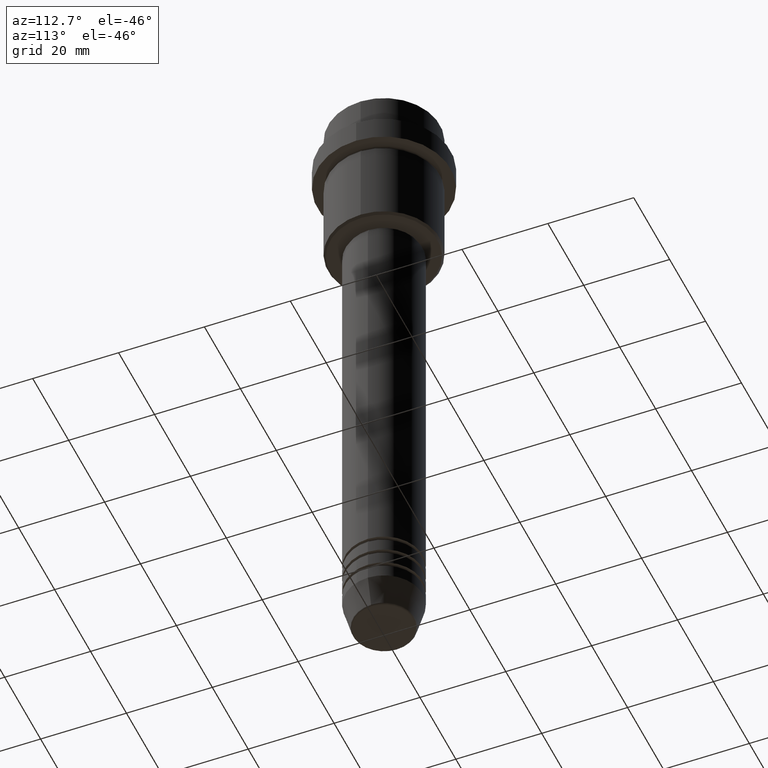
[diagram: clean part render]
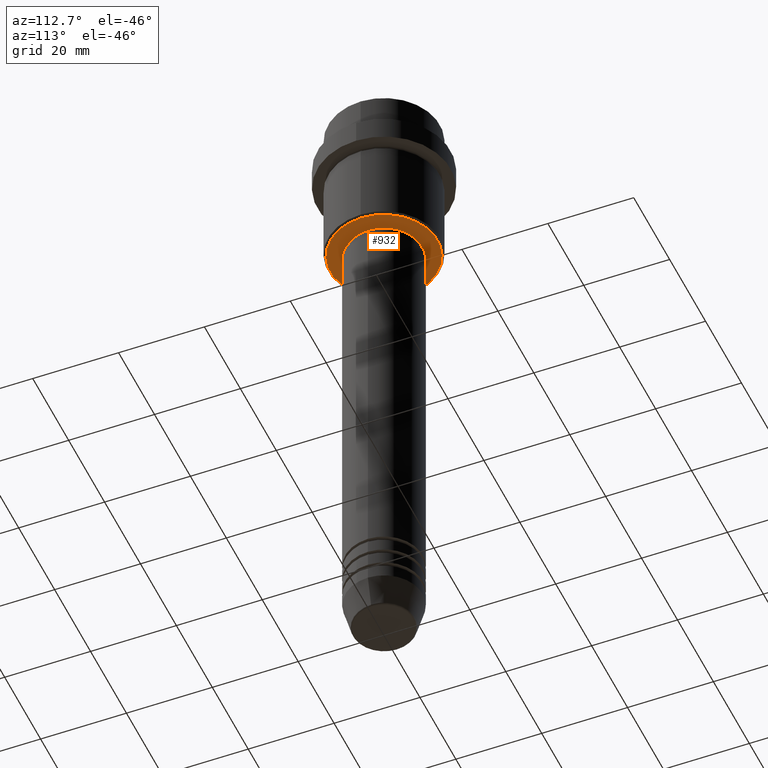
[diagram: same view with one face highlighted and labeled with its STEP entity id]
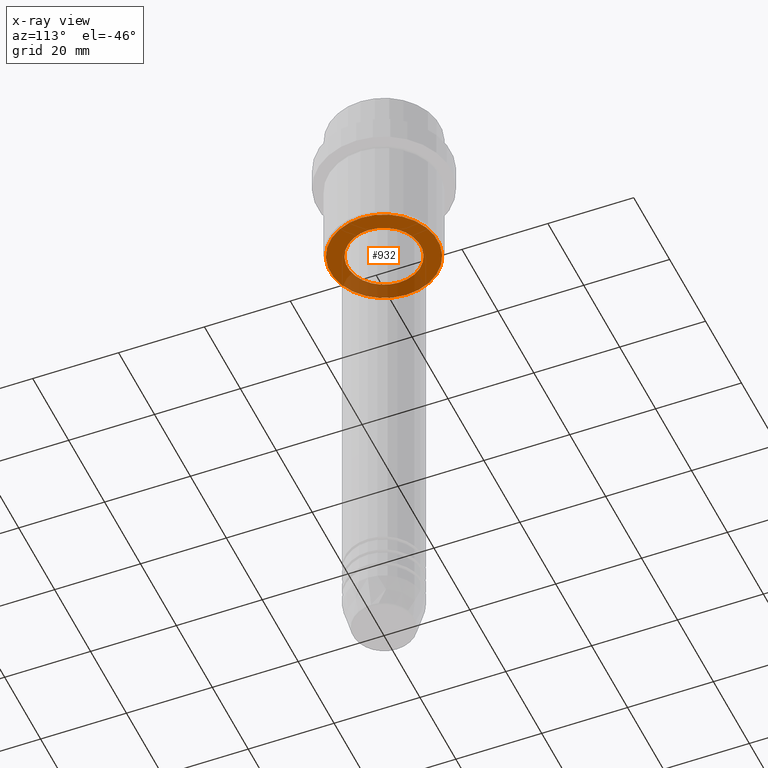
[diagram: x-ray of the same camera — body ghosted, the highlighted face saturated]
A machine part, auxiliary view. The second image highlights one B-rep face of the part: STEP entity #932.
The next image is the same camera in x-ray: the body ghosted, the highlighted face saturated — about 27% of this face is hidden behind the body in this view.
In plain terms, the highlighted planar face has unit normal (0, 0, -1).
Its self-contained STEP definition (entity closure, byte-faithful):
#3 = DIRECTION ( 'NONE',  ( -1.000000000000000000, 0.000000000000000000, -0.000000000000000000 ) ) ;
#11 = CIRCLE ( 'NONE', #460, 12.49999999999998401 ) ;
#22 = DIRECTION ( 'NONE',  ( 1.000000000000000000, 0.000000000000000000, 0.000000000000000000 ) ) ;
#23 = CARTESIAN_POINT ( 'NONE',  ( 0.000000000000000000, 0.000000000000000000, -36.00000000000000000 ) ) ;
#70 = EDGE_LOOP ( 'NONE', ( #1366, #1353 ) ) ;
#76 = VERTEX_POINT ( 'NONE', #345 ) ;
#79 = AXIS2_PLACEMENT_3D ( 'NONE', #1261, #824, #270 ) ;
#112 = EDGE_CURVE ( 'NONE', #1161, #266, #966, .T. ) ;
#180 = EDGE_LOOP ( 'NONE', ( #1111, #1273 ) ) ;
#227 = FACE_OUTER_BOUND ( 'NONE', #180, .T. ) ;
#230 = DIRECTION ( 'NONE',  ( -1.000000000000000000, 0.000000000000000000, 0.000000000000000000 ) ) ;
#266 = VERTEX_POINT ( 'NONE', #1159 ) ;
#270 = DIRECTION ( 'NONE',  ( 1.000000000000000000, 0.000000000000000000, 0.000000000000000000 ) ) ;
#337 = DIRECTION ( 'NONE',  ( 0.000000000000000000, 0.000000000000000000, -1.000000000000000000 ) ) ;
#345 = CARTESIAN_POINT ( 'NONE',  ( -12.49999999999998401, 1.561424668912874125E-15, -36.00000000000000000 ) ) ;
#354 = CIRCLE ( 'NONE', #814, 12.49999999999998401 ) ;
#375 = AXIS2_PLACEMENT_3D ( 'NONE', #1352, #669, #22 ) ;
#460 = AXIS2_PLACEMENT_3D ( 'NONE', #1393, #735, #1177 ) ;
#500 = CARTESIAN_POINT ( 'NONE',  ( -8.499999999999994671, 1.040949779275249745E-15, -36.00000000000000000 ) ) ;
#638 = VERTEX_POINT ( 'NONE', #1027 ) ;
#669 = DIRECTION ( 'NONE',  ( -0.000000000000000000, -0.000000000000000000, 1.000000000000000000 ) ) ;
#735 = DIRECTION ( 'NONE',  ( 0.000000000000000000, 0.000000000000000000, -1.000000000000000000 ) ) ;
#737 = CIRCLE ( 'NONE', #79, 8.499999999999994671 ) ;
#763 = EDGE_CURVE ( 'NONE', #266, #1161, #737, .T. ) ;
#814 = AXIS2_PLACEMENT_3D ( 'NONE', #23, #1348, #230 ) ;
#824 = DIRECTION ( 'NONE',  ( -0.000000000000000000, -0.000000000000000000, 1.000000000000000000 ) ) ;
#910 = EDGE_CURVE ( 'NONE', #638, #76, #11, .T. ) ;
#913 = PLANE ( 'NONE',  #1009 ) ;
#932 = ADVANCED_FACE ( 'NONE', ( #227, #1326 ), #913, .T. ) ;
#966 = CIRCLE ( 'NONE', #375, 8.499999999999994671 ) ;
#991 = CARTESIAN_POINT ( 'NONE',  ( 0.000000000000000000, 13.00000000000000000, -36.00000000000000000 ) ) ;
#1009 = AXIS2_PLACEMENT_3D ( 'NONE', #991, #337, #3 ) ;
#1027 = CARTESIAN_POINT ( 'NONE',  ( 12.49999999999998401, 0.000000000000000000, -36.00000000000000000 ) ) ;
#1111 = ORIENTED_EDGE ( 'NONE', *, *, #910, .T. ) ;
#1159 = CARTESIAN_POINT ( 'NONE',  ( 8.499999999999994671, 0.000000000000000000, -36.00000000000000000 ) ) ;
#1161 = VERTEX_POINT ( 'NONE', #500 ) ;
#1177 = DIRECTION ( 'NONE',  ( -1.000000000000000000, 0.000000000000000000, 0.000000000000000000 ) ) ;
#1261 = CARTESIAN_POINT ( 'NONE',  ( 0.000000000000000000, 0.000000000000000000, -36.00000000000000000 ) ) ;
#1273 = ORIENTED_EDGE ( 'NONE', *, *, #1403, .T. ) ;
#1326 = FACE_BOUND ( 'NONE', #70, .T. ) ;
#1348 = DIRECTION ( 'NONE',  ( 0.000000000000000000, 0.000000000000000000, -1.000000000000000000 ) ) ;
#1352 = CARTESIAN_POINT ( 'NONE',  ( 0.000000000000000000, 0.000000000000000000, -36.00000000000000000 ) ) ;
#1353 = ORIENTED_EDGE ( 'NONE', *, *, #112, .T. ) ;
#1366 = ORIENTED_EDGE ( 'NONE', *, *, #763, .T. ) ;
#1393 = CARTESIAN_POINT ( 'NONE',  ( 0.000000000000000000, 0.000000000000000000, -36.00000000000000000 ) ) ;
#1403 = EDGE_CURVE ( 'NONE', #76, #638, #354, .T. ) ;